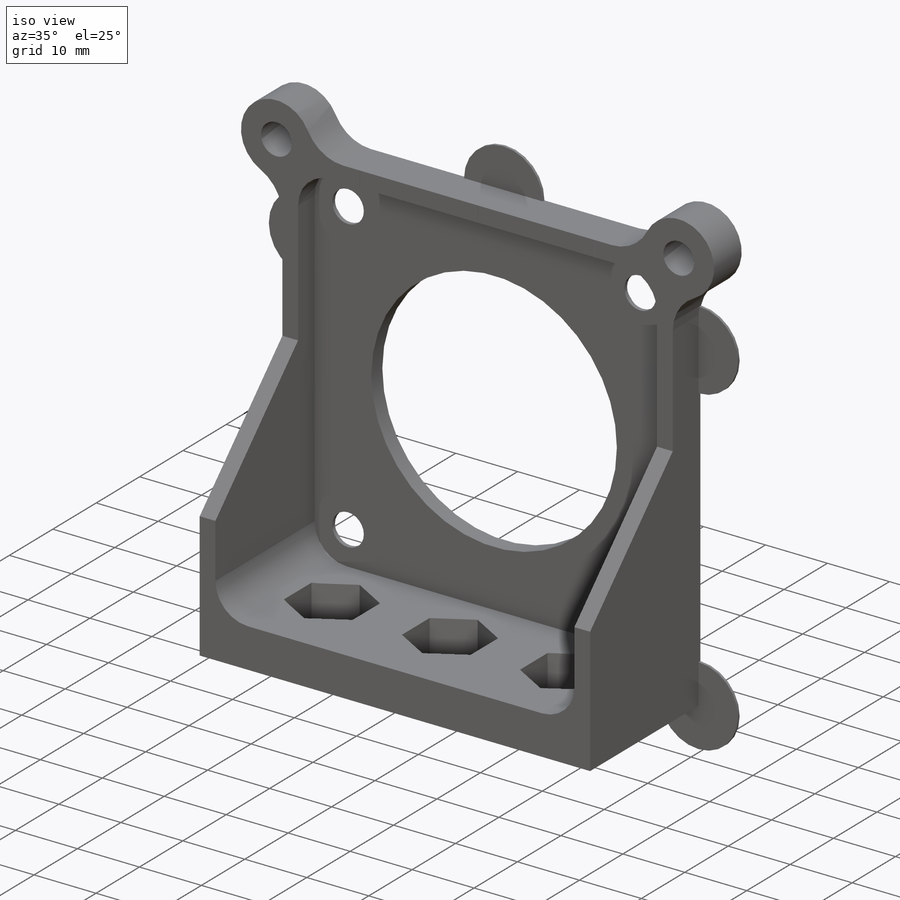
[diagram: iso view]
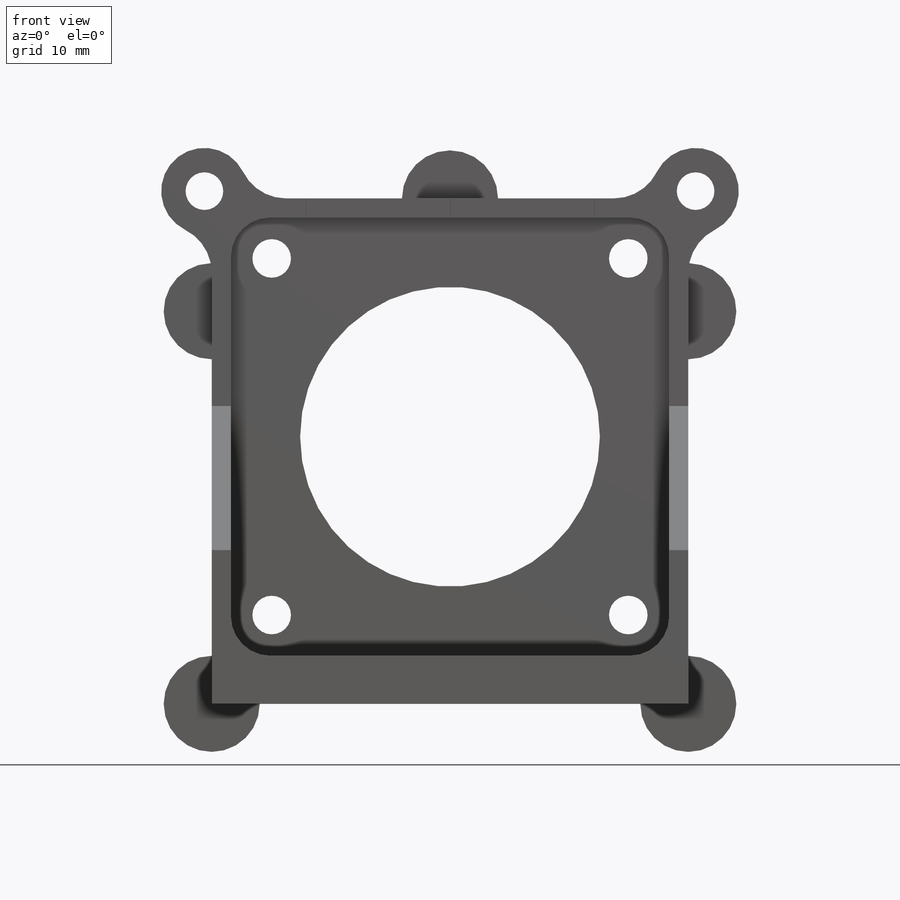
[diagram: front view]
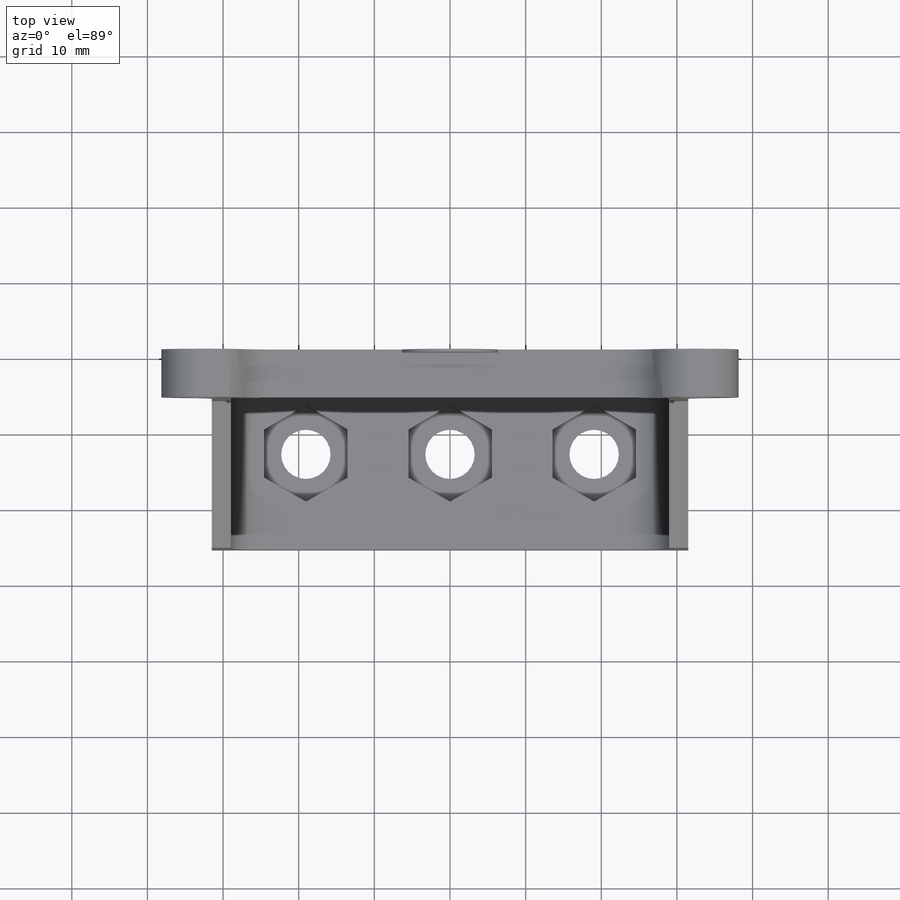
[diagram: top view]
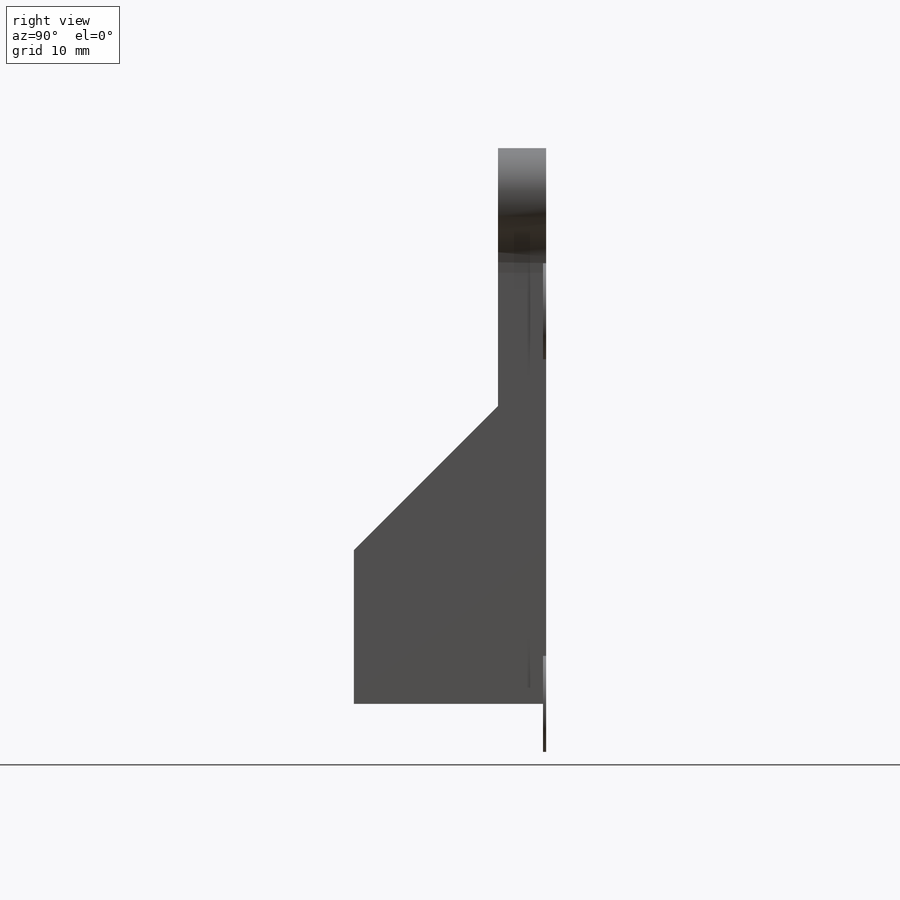
[diagram: right view]
SOLIDWORKS PART (.sldprt)
format: sldprt  version: not decoded by parser v0  size: 1,065,472 bytes
history: native  units: mm
features: sketch x13, extrude x5, hole x3, material x1, chamfer x1, cut_extrude x1, mirror x1, fillet x1 (+13 scaffold rows collapsed)
feature tree (39):
  scaffold x13  (default folders/planes/origin — collapsed)
  material  "Material <not specified>"
  sketch  "Sketch2"  dims[D1=0.0mm]
  sketch  "Sketch3"  dims[c1.D5=2.54mm c1.D6=38.1mm c1.D1=3.81mm c1.D2=3.81mm c1.D3=3.81mm c1.D4=3.81mm c2.D6=0.762mm c2.D5=0.762mm c2.D1=0.762mm c2.D2=2.54mm]
  extrude  "Boss-Extrude1"  Depth=2.54mm
  sketch  "Sketch16"  dims[D1=0.0mm D2=2.54mm]
  extrude  "Boss-Extrude6"  Depth=3.81mm
  sketch  "Sketch17"  dims[c1.D1=6.35mm c1.D2=19.05mm c2.D1=6.35mm c2.D2=0.0mm]
  extrude  "Boss-Extrude10"  Depth=22.86mm
  chamfer  "Chamfer1"  Distance=20.32mm Angle=45deg
  sketch  "Sketch18"  dims[D1=11.049mm D2=9.525mm]
  cut_extrude  "Cut-Extrude2"  Depth=5.08mm
  hole  "1/4 Clearance Hole1"  Diameter=6.5278mm Depth=1.27mm
  sketch  "Sketch20"
  sketch  "Sketch19"  dims[hole-wizard template sketch: 60 standard entries collapsed; hole parameters kept: c18.Thru Hole Depth=1.27mm]
  sketch  "Sketch22"  dims[c1.D1=11.43mm c1.D2=4.826mm c1.D3=4.445mm c2.D1=7.62mm c2.D2=6.35mm c2.D3=7.874mm]
  extrude  "Boss-Extrude18"  [1 undecoded]
  mirror  "Mirror3"
  fillet  "Fillet1"  Radius=6.35mm
  hole  "CSK for  Flat Head Machine Screw (100)1"  Diameter=4.3053mm Depth=25.4mm
  sketch  "Sketch24"
  sketch  "Sketch23"  dims[hole-wizard template sketch: 57 standard entries collapsed; hole parameters kept: c17.Thru Hole Dia.=4.3053mm c17.Thru Hole Depth=25.4mm c17.C'Sink Dia.=~8.432798mm c17.D4=~19.358014mm c17.C'Sink Angle=100.0deg c17.Head Clearance=0.508mm]
  hole  "#10 Clearance Hole1"  Diameter=4.9784mm Depth=25.4mm
  sketch  "Sketch26"
  sketch  "Sketch25"  dims[hole-wizard template sketch: 60 standard entries collapsed; hole parameters kept: c18.Thru Hole Depth=25.4mm]
  sketch  "Sketch6"  dims[c1.D1=12.7mm c1.D2=12.7mm c2.D1=25.4mm]
  extrude  "Tabs"  Depth=0.4mm
decode coverage: 20 of 25 modeling features carry decoded parameters
note: ~ marks probable driven/reference dimensions
note: 1 parameter value undecoded
note: suppression state not decoded; provenance and decode notes live in map.json
